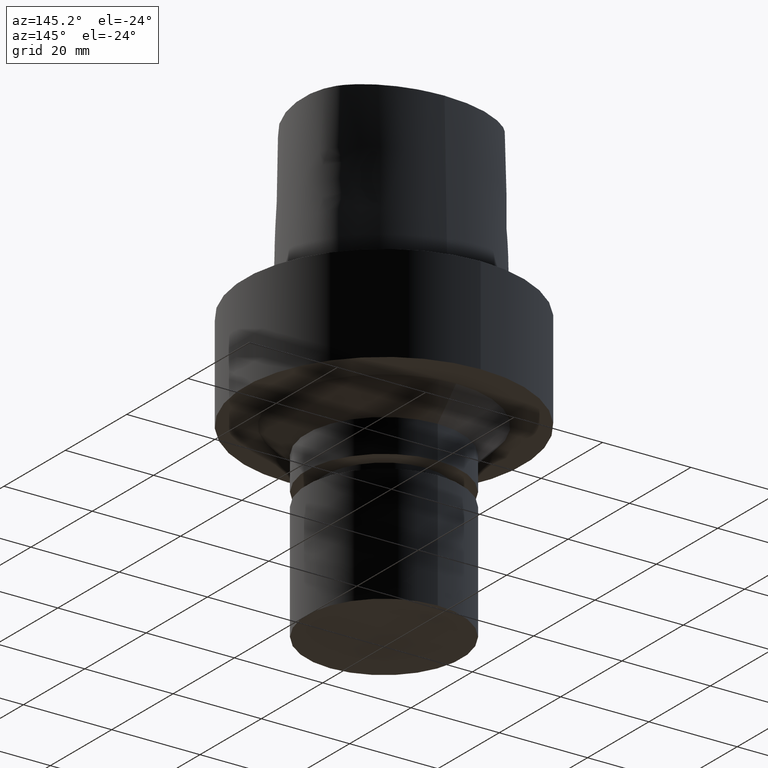
[diagram: clean part render]
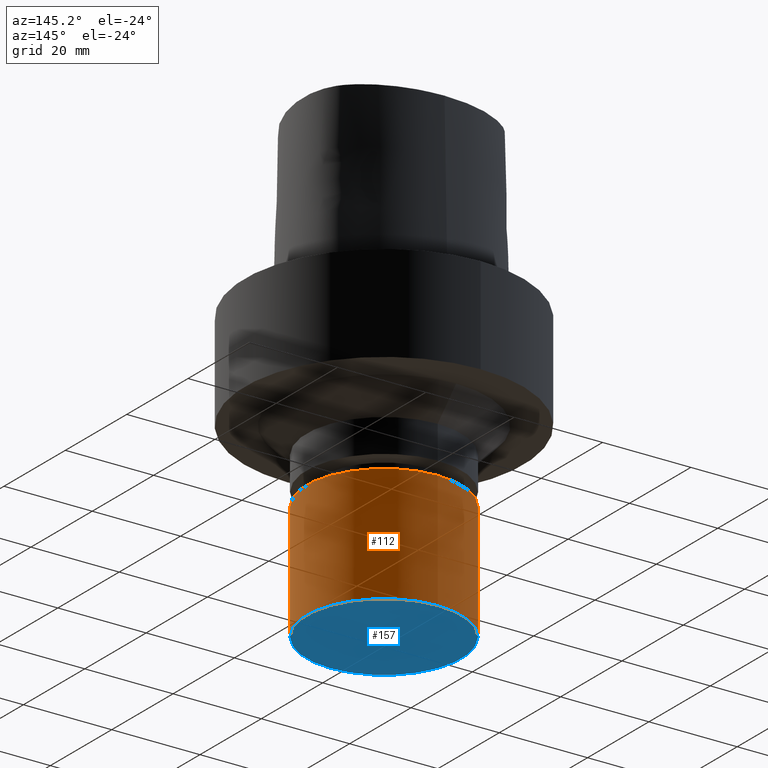
[diagram: same view with the hole feature highlighted: cylindrical wall and planar end face, labeled with their STEP entity ids]
A machine part, auxiliary view. The highlighted faces form one hole feature of diameter 35 mm: the cylindrical wall (entity #112, orange) and its adjacent planar end face (entity #157, blue) — they share a circular edge in the B-rep.
Wall:
#112=ADVANCED_FACE('Unnamed[1]',(#253,#254),#255,.T.);
#119=EDGE_CURVE('Unnamed[1]',#264,#264,#265,.T.);
#140=EDGE_CURVE('Unnamed[1]',#292,#292,#293,.T.);
#253=FACE_BOUND('',#457,.T.);
#254=FACE_BOUND('',#458,.T.);
#255=CYLINDRICAL_SURFACE('',#459,17.5);
#264=VERTEX_POINT('',#486);
#265=CIRCLE('',#487,17.5);
#292=VERTEX_POINT('',#521);
#293=CIRCLE('',#522,17.5);
#457=EDGE_LOOP('',(#802));
#458=EDGE_LOOP('',(#803));
#459=AXIS2_PLACEMENT_3D('',#804,#805,#806);
#486=CARTESIAN_POINT('',(3.98010209722889E-015,17.5,-64.9999999999999));
#487=AXIS2_PLACEMENT_3D('',#813,#814,#815);
#521=CARTESIAN_POINT('',(2.35744602269002E-015,17.5,-38.5000152587891));
#522=AXIS2_PLACEMENT_3D('',#840,#841,#842);
#802=ORIENTED_EDGE('',*,*,#119,.F.);
#803=ORIENTED_EDGE('',*,*,#140,.T.);
#804=CARTESIAN_POINT('',(3.16877405995946E-015,6.33754811991891E-015,-51.7500076293945));
#805=DIRECTION('',(6.12323399573677E-017,1.22464679914735E-016,-1.0));
#806=DIRECTION('',(-1.23259516440783E-032,1.0,1.22464679914735E-016));
#813=CARTESIAN_POINT('',(3.98010209722889E-015,7.96020419445778E-015,-64.9999999999999));
#814=DIRECTION('',(6.12323399573677E-017,1.22464679914735E-016,-1.0));
#815=DIRECTION('',(-1.23259516440783E-032,1.0,1.22464679914735E-016));
#840=CARTESIAN_POINT('',(2.35744602269002E-015,4.71489204538003E-015,-38.5000152587891));
#841=DIRECTION('',(6.12323399573677E-017,1.22464679914735E-016,-1.0));
#842=DIRECTION('',(-1.23259516440783E-032,1.0,1.22464679914735E-016));
End face:
#119=EDGE_CURVE('Unnamed[1]',#264,#264,#265,.T.);
#157=ADVANCED_FACE('Unnamed[1]',(#317),#318,.T.);
#264=VERTEX_POINT('',#486);
#265=CIRCLE('',#487,17.5);
#317=FACE_OUTER_BOUND('',#570,.T.);
#318=PLANE('',#571);
#486=CARTESIAN_POINT('',(3.98010209722889E-015,17.5,-64.9999999999999));
#487=AXIS2_PLACEMENT_3D('',#813,#814,#815);
#570=EDGE_LOOP('',(#865));
#571=AXIS2_PLACEMENT_3D('',#866,#867,#868);
#813=CARTESIAN_POINT('',(3.98010209722889E-015,7.96020419445778E-015,-64.9999999999999));
#814=DIRECTION('',(6.12323399573677E-017,1.22464679914735E-016,-1.0));
#815=DIRECTION('',(-1.23259516440783E-032,1.0,1.22464679914735E-016));
#865=ORIENTED_EDGE('',*,*,#119,.T.);
#866=CARTESIAN_POINT('',(3.98010209722889E-015,8.75000000000001,-64.9999999999999));
#867=DIRECTION('',(6.12323399573677E-017,1.22464679914735E-016,-1.0));
#868=DIRECTION('',(-1.23259516440783E-032,1.0,1.22464679914735E-016));